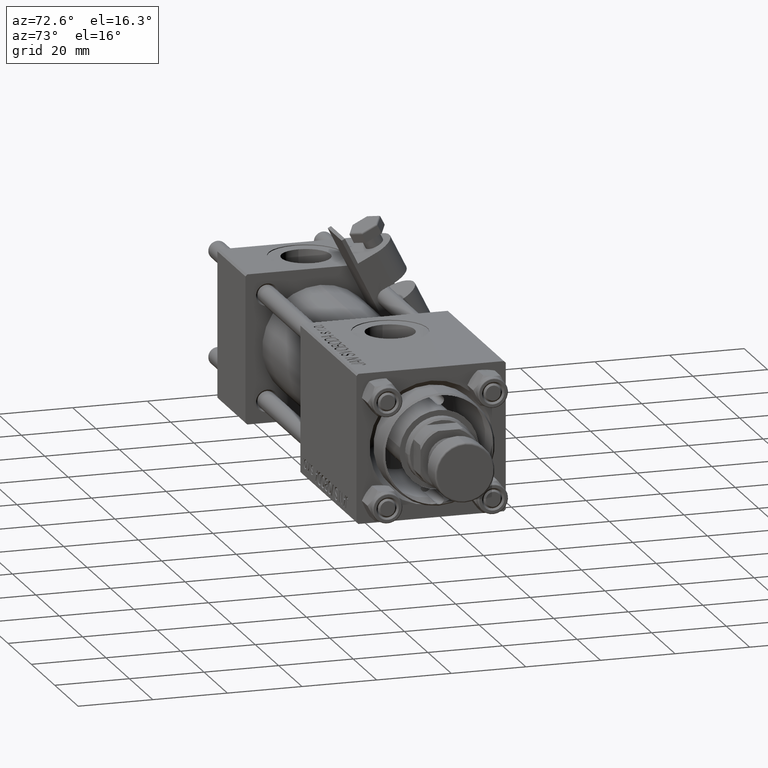
[diagram: clean part render]
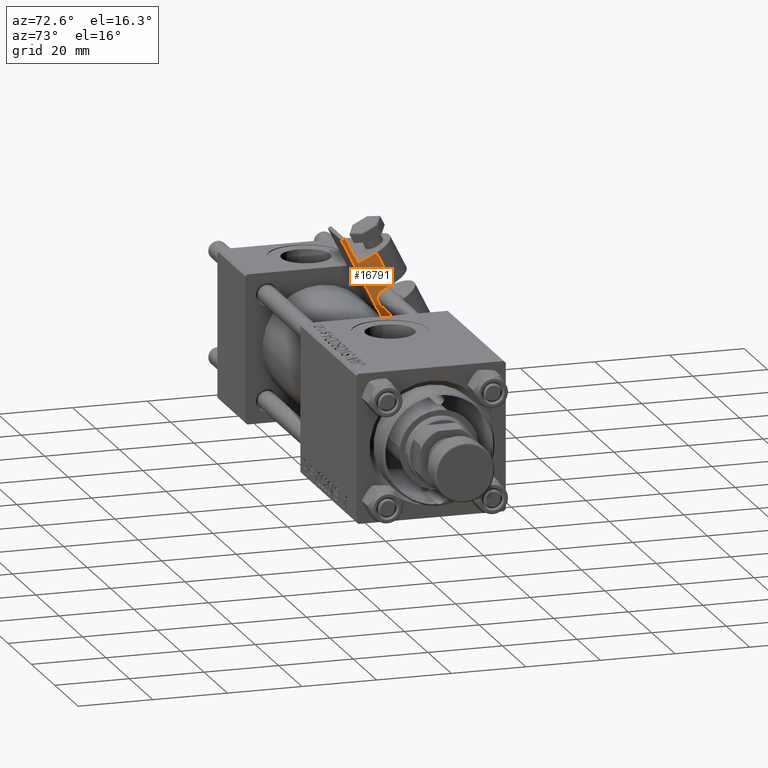
[diagram: same view with one face highlighted and labeled with its STEP entity id]
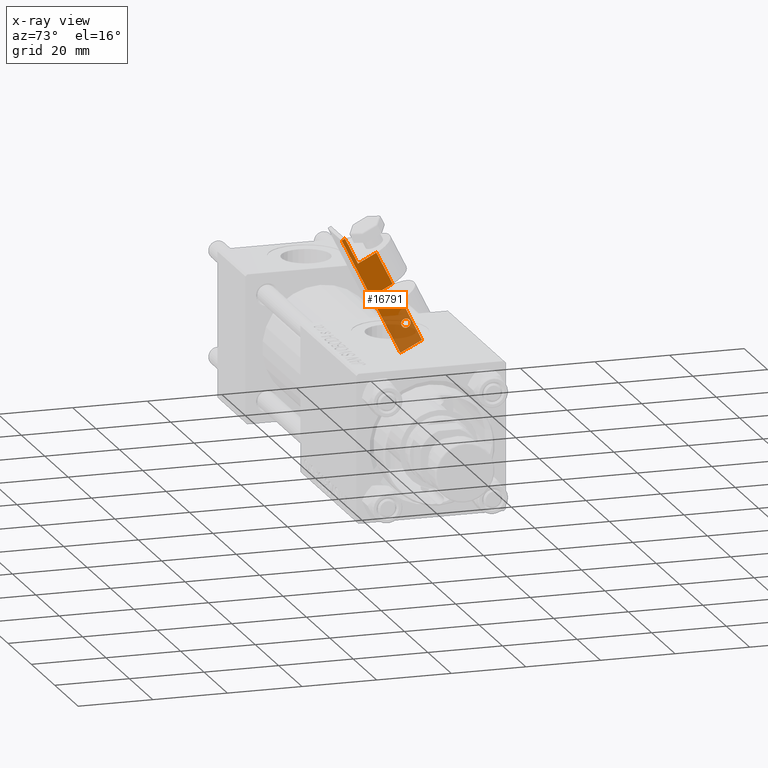
[diagram: x-ray of the same camera — body ghosted, the highlighted face saturated]
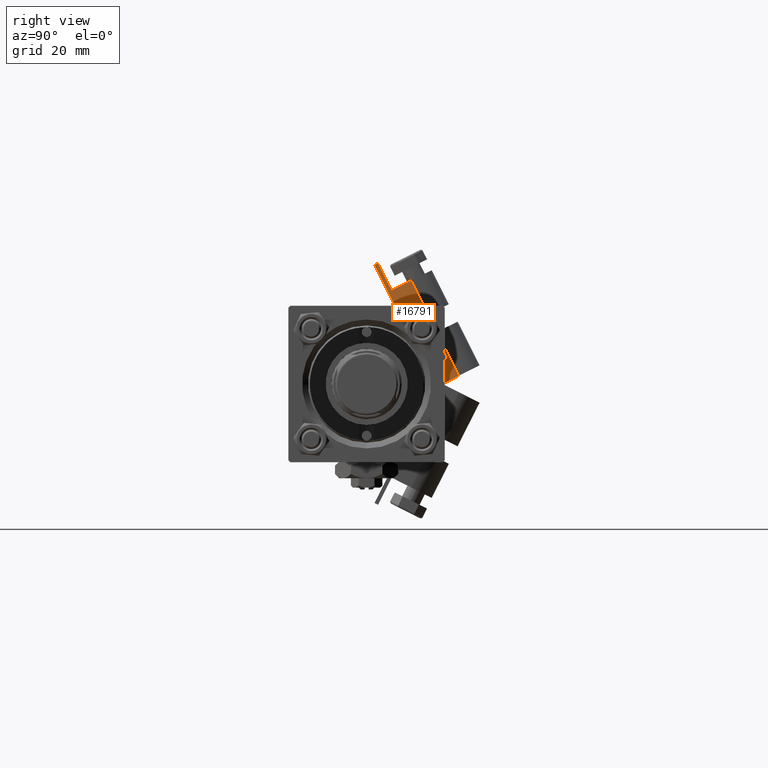
[diagram: same view with one face highlighted and labeled with its STEP entity id]
A machine part, auxiliary view. The second image highlights one B-rep face of the part: STEP entity #16791.
The next image is the same camera in x-ray: the body ghosted, the highlighted face saturated — about 40% of this face is hidden behind the body in this view.
A second angle (right view) of the same face is appended — the face is thin or edge-on in the first view.
In plain terms, the highlighted planar face has unit normal (-1, -0, -0).
Its self-contained STEP definition (entity closure, byte-faithful):
#589 = DIRECTION ( 'NONE',  ( -1.000000000000000000, -0.000000000000000000, -0.000000000000000000 ) ) ;
#1130 = LINE ( 'NONE', #13202, #40833 ) ;
#2444 = DIRECTION ( 'NONE',  ( -0.000000000000000000, 8.006416042969881021E-16, 1.000000000000000000 ) ) ;
#2607 = ORIENTED_EDGE ( 'NONE', *, *, #52487, .F. ) ;
#4277 = LINE ( 'NONE', #49337, #15528 ) ;
#4546 = DIRECTION ( 'NONE',  ( 0.000000000000000000, 1.000000000000000000, -3.469446951953614189E-15 ) ) ;
#4556 = CARTESIAN_POINT ( 'NONE',  ( 19.68999999999999773, 4.799999999999999822, 6.000000000000001776 ) ) ;
#4765 = EDGE_CURVE ( 'NONE', #12974, #33140, #35963, .T. ) ;
#4818 = CARTESIAN_POINT ( 'NONE',  ( 12.23999999999999844, 3.500000000000000000, 6.000000000000002665 ) ) ;
#5163 = VERTEX_POINT ( 'NONE', #23397 ) ;
#7444 = EDGE_CURVE ( 'NONE', #5163, #14488, #44019, .T. ) ;
#8533 = EDGE_CURVE ( 'NONE', #44141, #28422, #44105, .T. ) ;
#9228 = AXIS2_PLACEMENT_3D ( 'NONE', #25573, #25841, #21803 ) ;
#9411 = CIRCLE ( 'NONE', #16244, 1.250000000000001110 ) ;
#9882 = DIRECTION ( 'NONE',  ( 0.000000000000000000, 1.000000000000000000, -6.938893903907228378E-16 ) ) ;
#10495 = CARTESIAN_POINT ( 'NONE',  ( 20.94000000000000128, 4.799999999999999822, 6.000000000000001776 ) ) ;
#11016 = VECTOR ( 'NONE', #13344, 1000.000000000000000 ) ;
#11114 = CARTESIAN_POINT ( 'NONE',  ( 0.000000000000000000, 6.499999999999998224, 6.000000000000000000 ) ) ;
#11635 = VECTOR ( 'NONE', #589, 1000.000000000000000 ) ;
#11787 = CIRCLE ( 'NONE', #9228, 2.500000000000000000 ) ;
#12237 = CARTESIAN_POINT ( 'NONE',  ( 22.19000000000000128, 4.799999999999999822, 6.000000000000001776 ) ) ;
#12557 = EDGE_CURVE ( 'NONE', #32865, #36134, #4277, .T. ) ;
#12811 = LINE ( 'NONE', #25141, #45836 ) ;
#12966 = DIRECTION ( 'NONE',  ( 0.000000000000000000, 1.000000000000000000, -8.006416042969881021E-16 ) ) ;
#12974 = VERTEX_POINT ( 'NONE', #12237 ) ;
#13202 = CARTESIAN_POINT ( 'NONE',  ( 14.74000000000000021, 6.499999999999999112, 6.000000000000006217 ) ) ;
#13344 = DIRECTION ( 'NONE',  ( -1.000000000000000000, -0.000000000000000000, -0.000000000000000000 ) ) ;
#13495 = PLANE ( 'NONE',  #49128 ) ;
#13862 = ORIENTED_EDGE ( 'NONE', *, *, #15594, .T. ) ;
#14398 = CARTESIAN_POINT ( 'NONE',  ( 27.24000000000000199, 6.499999999999999112, 6.000000000000006217 ) ) ;
#14488 = VERTEX_POINT ( 'NONE', #20142 ) ;
#14932 = CARTESIAN_POINT ( 'NONE',  ( 27.24000000000000199, 6.499999999999999112, 6.000000000000006217 ) ) ;
#15484 = VECTOR ( 'NONE', #43647, 1000.000000000000000 ) ;
#15528 = VECTOR ( 'NONE', #4546, 1000.000000000000000 ) ;
#15584 = ORIENTED_EDGE ( 'NONE', *, *, #19840, .T. ) ;
#15594 = EDGE_CURVE ( 'NONE', #27770, #51487, #20808, .T. ) ;
#16244 = AXIS2_PLACEMENT_3D ( 'NONE', #10495, #2444, #31147 ) ;
#16723 = FACE_BOUND ( 'NONE', #50709, .T. ) ;
#16791 = ADVANCED_FACE ( 'NONE', ( #16723, #30133 ), #13495, .F. ) ;
#17098 = VECTOR ( 'NONE', #52359, 1000.000000000000000 ) ;
#17356 = DIRECTION ( 'NONE',  ( -1.000000000000000000, -0.000000000000000000, -0.000000000000000000 ) ) ;
#17658 = DIRECTION ( 'NONE',  ( 0.000000000000000000, -8.006416042969881021E-16, -1.000000000000000000 ) ) ;
#19201 = LINE ( 'NONE', #14932, #15484 ) ;
#19840 = EDGE_CURVE ( 'NONE', #21792, #42929, #12811, .T. ) ;
#20142 = CARTESIAN_POINT ( 'NONE',  ( 9.740000000000000213, 3.500000000000000000, 6.000000000000002665 ) ) ;
#20808 = CIRCLE ( 'NONE', #33655, 2.500000000000000000 ) ;
#20812 = CARTESIAN_POINT ( 'NONE',  ( -7.780000000000000249, 1.000000000000000000, 6.000000000000001776 ) ) ;
#20963 = CARTESIAN_POINT ( 'NONE',  ( 9.740000000000000213, 0.000000000000000000, 6.000000000000005329 ) ) ;
#21792 = VERTEX_POINT ( 'NONE', #14398 ) ;
#21803 = DIRECTION ( 'NONE',  ( 0.000000000000000000, 1.000000000000000000, -6.938893903907228378E-16 ) ) ;
#21834 = DIRECTION ( 'NONE',  ( -0.000000000000000000, 8.006416042969881021E-16, 1.000000000000000000 ) ) ;
#23397 = CARTESIAN_POINT ( 'NONE',  ( 9.740000000000000213, 6.499999999999998224, 6.000000000000000000 ) ) ;
#23445 = ORIENTED_EDGE ( 'NONE', *, *, #36922, .F. ) ;
#25141 = CARTESIAN_POINT ( 'NONE',  ( 27.24000000000000199, 6.499999999999999112, 6.000000000000006217 ) ) ;
#25573 = CARTESIAN_POINT ( 'NONE',  ( 12.24000000000000021, 3.500000000000000000, 6.000000000000002665 ) ) ;
#25841 = DIRECTION ( 'NONE',  ( 0.000000000000000000, -8.006416042969881021E-16, -1.000000000000000000 ) ) ;
#25872 = CARTESIAN_POINT ( 'NONE',  ( 12.23999999999999844, 1.000000000000000000, 6.000000000000001776 ) ) ;
#26698 = ORIENTED_EDGE ( 'NONE', *, *, #52348, .F. ) ;
#27644 = CARTESIAN_POINT ( 'NONE',  ( 9.740000000000000213, 6.499999999999998224, 6.000000000000000000 ) ) ;
#27770 = VERTEX_POINT ( 'NONE', #39704 ) ;
#28044 = ORIENTED_EDGE ( 'NONE', *, *, #49933, .F. ) ;
#28066 = LINE ( 'NONE', #20812, #35220 ) ;
#28422 = VERTEX_POINT ( 'NONE', #30582 ) ;
#28754 = LINE ( 'NONE', #20963, #11635 ) ;
#29138 = DIRECTION ( 'NONE',  ( 1.000000000000000000, -0.000000000000000000, -0.000000000000000000 ) ) ;
#29425 = ORIENTED_EDGE ( 'NONE', *, *, #8533, .T. ) ;
#29496 = CARTESIAN_POINT ( 'NONE',  ( 27.24000000000000199, 0.000000000000000000, 6.000000000000005329 ) ) ;
#29901 = CARTESIAN_POINT ( 'NONE',  ( 20.94000000000000128, 4.799999999999999822, 6.000000000000001776 ) ) ;
#30133 = FACE_OUTER_BOUND ( 'NONE', #47446, .T. ) ;
#30582 = CARTESIAN_POINT ( 'NONE',  ( 0.000000000000000000, 1.000000000000000000, 6.000000000000004441 ) ) ;
#31147 = DIRECTION ( 'NONE',  ( 0.000000000000000000, 1.000000000000000000, -6.938893903907222461E-16 ) ) ;
#32865 = VERTEX_POINT ( 'NONE', #42228 ) ;
#33140 = VERTEX_POINT ( 'NONE', #4556 ) ;
#33655 = AXIS2_PLACEMENT_3D ( 'NONE', #4818, #17658, #9882 ) ;
#34717 = DIRECTION ( 'NONE',  ( 0.000000000000000000, 1.000000000000000000, -6.938893903907222461E-16 ) ) ;
#35146 = CARTESIAN_POINT ( 'NONE',  ( -7.780000000000000249, 1.000000000000000000, 6.000000000000001776 ) ) ;
#35220 = VECTOR ( 'NONE', #29138, 1000.000000000000000 ) ;
#35801 = DIRECTION ( 'NONE',  ( 0.000000000000000000, -1.000000000000000000, 8.006416042969881021E-16 ) ) ;
#35963 = CIRCLE ( 'NONE', #52282, 1.250000000000001110 ) ;
#36134 = VERTEX_POINT ( 'NONE', #35146 ) ;
#36922 = EDGE_CURVE ( 'NONE', #46094, #32865, #28754, .T. ) ;
#37930 = ORIENTED_EDGE ( 'NONE', *, *, #7444, .F. ) ;
#38156 = EDGE_CURVE ( 'NONE', #42929, #27770, #1130, .T. ) ;
#39704 = CARTESIAN_POINT ( 'NONE',  ( 14.74000000000000021, 3.500000000000000000, 6.000000000000006217 ) ) ;
#40296 = VECTOR ( 'NONE', #35801, 1000.000000000000000 ) ;
#40410 = ORIENTED_EDGE ( 'NONE', *, *, #47073, .T. ) ;
#40833 = VECTOR ( 'NONE', #50235, 1000.000000000000000 ) ;
#41013 = LINE ( 'NONE', #50112, #11016 ) ;
#42228 = CARTESIAN_POINT ( 'NONE',  ( -7.780000000000000249, 0.000000000000000000, 6.000000000000005329 ) ) ;
#42483 = CARTESIAN_POINT ( 'NONE',  ( 9.740000000000000213, 6.499999999999998224, 6.000000000000000000 ) ) ;
#42929 = VERTEX_POINT ( 'NONE', #52296 ) ;
#43647 = DIRECTION ( 'NONE',  ( 0.000000000000000000, -1.000000000000000000, -1.334402673828313339E-16 ) ) ;
#43735 = CARTESIAN_POINT ( 'NONE',  ( 0.000000000000000000, 6.499999999999998224, 6.000000000000000000 ) ) ;
#44019 = LINE ( 'NONE', #27644, #17098 ) ;
#44105 = LINE ( 'NONE', #11114, #40296 ) ;
#44141 = VERTEX_POINT ( 'NONE', #43735 ) ;
#44683 = EDGE_CURVE ( 'NONE', #51487, #14488, #11787, .T. ) ;
#45836 = VECTOR ( 'NONE', #17356, 1000.000000000000000 ) ;
#46094 = VERTEX_POINT ( 'NONE', #29496 ) ;
#46106 = ORIENTED_EDGE ( 'NONE', *, *, #4765, .F. ) ;
#46390 = ORIENTED_EDGE ( 'NONE', *, *, #12557, .F. ) ;
#47073 = EDGE_CURVE ( 'NONE', #5163, #44141, #41013, .T. ) ;
#47350 = ORIENTED_EDGE ( 'NONE', *, *, #44683, .T. ) ;
#47446 = EDGE_LOOP ( 'NONE', ( #29425, #2607, #46390, #23445, #26698, #15584, #48744, #13862, #47350, #37930, #40410 ) ) ;
#48744 = ORIENTED_EDGE ( 'NONE', *, *, #38156, .T. ) ;
#49128 = AXIS2_PLACEMENT_3D ( 'NONE', #42483, #49993, #12966 ) ;
#49337 = CARTESIAN_POINT ( 'NONE',  ( -7.780000000000000249, 0.000000000000000000, 6.000000000000005329 ) ) ;
#49933 = EDGE_CURVE ( 'NONE', #33140, #12974, #9411, .T. ) ;
#49993 = DIRECTION ( 'NONE',  ( 0.000000000000000000, -8.006416042969881021E-16, -1.000000000000000000 ) ) ;
#50112 = CARTESIAN_POINT ( 'NONE',  ( 9.740000000000000213, 6.499999999999998224, 6.000000000000000000 ) ) ;
#50235 = DIRECTION ( 'NONE',  ( 0.000000000000000000, -1.000000000000000000, -1.334402673828313339E-16 ) ) ;
#50709 = EDGE_LOOP ( 'NONE', ( #28044, #46106 ) ) ;
#51487 = VERTEX_POINT ( 'NONE', #25872 ) ;
#52282 = AXIS2_PLACEMENT_3D ( 'NONE', #29901, #21834, #34717 ) ;
#52296 = CARTESIAN_POINT ( 'NONE',  ( 14.74000000000000021, 6.499999999999999112, 6.000000000000006217 ) ) ;
#52348 = EDGE_CURVE ( 'NONE', #21792, #46094, #19201, .T. ) ;
#52359 = DIRECTION ( 'NONE',  ( 0.000000000000000000, -1.000000000000000000, 8.006416042969881021E-16 ) ) ;
#52487 = EDGE_CURVE ( 'NONE', #36134, #28422, #28066, .T. ) ;